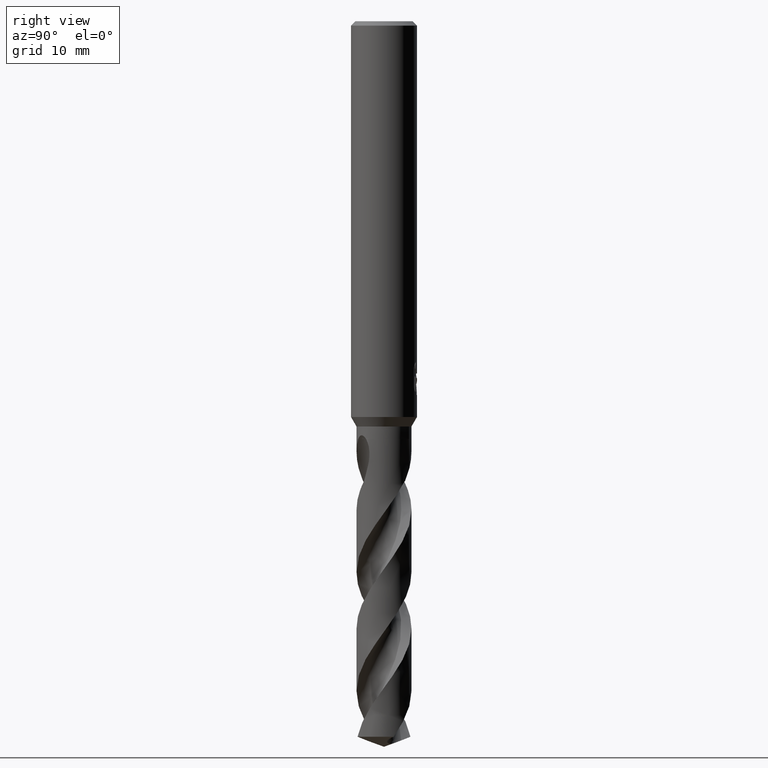
[diagram: clean part render]
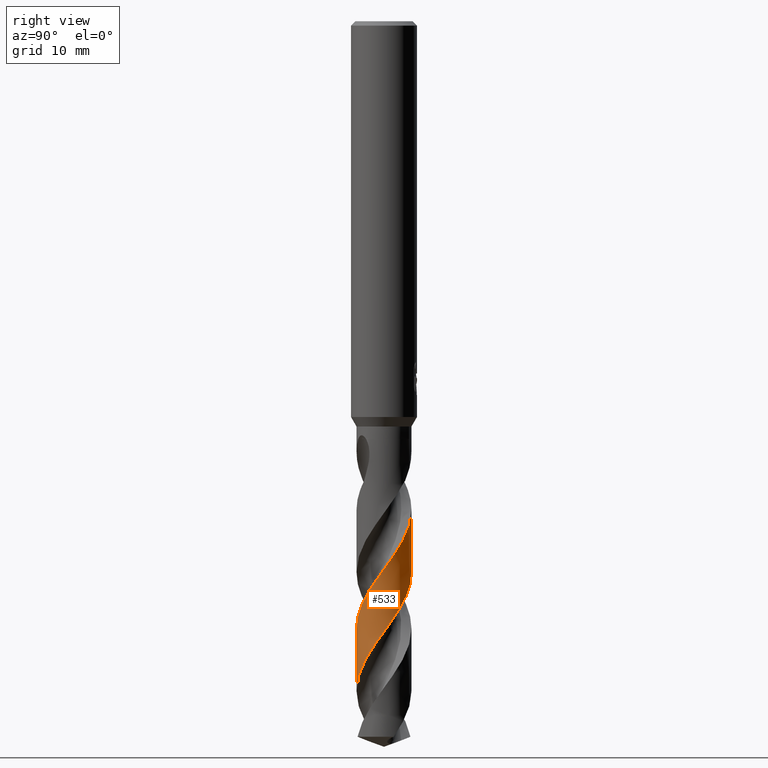
[diagram: same view with one face highlighted and labeled with its STEP entity id]
A machine part, right view. The second image highlights one B-rep face of the part: STEP entity #533.
In plain terms, the highlighted conical surface has half-angle 0 deg.
Its self-contained STEP definition (entity closure, byte-faithful):
#435=VERTEX_POINT('',#942);
#471=EDGE_CURVE('',#555,#435,#981,.T.);
#509=VERTEX_POINT('',#1024);
#533=ADVANCED_FACE('',(#1051),#1052,.T.);
#555=VERTEX_POINT('',#1074);
#561=VERTEX_POINT('',#1080);
#665=EDGE_CURVE('',#561,#435,#1193,.T.);
#717=EDGE_CURVE('',#555,#509,#1251,.T.);
#735=EDGE_CURVE('',#561,#509,#1270,.T.);
#942=CARTESIAN_POINT('',(-4.52282263023623E-014,2.49994476385778,-50.1265623821918));
#981=B_SPLINE_CURVE_WITH_KNOTS('',3,(#3710,#3711,#3712,#3713,#3714,#3715,#3716,#3717,#3718,#3719,#3720,#3721,#3722,#3723,#3724,#3725,#3726,#3727,#3728,#3729,#3730,#3731,#3732,#3733,#3734,#3735,#3736,#3737,#3738,#3739,#3740,#3741,#3742,#3743,#3744,#3745,#3746,#3747,#3748,#3749,#3750,#3751,#3752,#3753,#3754,#3755,#3756,#3757,#3758,#3759,#3760,#3761,#3762,#3763,#3764,#3765,#3766,#3767,#3768,#3769,#3770,#3771,#3772,#3773,#3774,#3775,#3776,#3777,#3778,#3779,#3780,#3781,#3782,#3783,#3784,#3785,#3786,#3787,#3788,#3789,#3790,#3791),.UNSPECIFIED.,.F.,.F.,(4,2,2,2,2,2,2,2,2,2,2,2,2,2,2,2,2,2,2,2,2,2,2,2,2,2,2,2,2,2,2,2,2,2,2,2,2,2,2,2,4),(0.0,0.705339197067454,0.793382321139927,2.25138278752314,3.00462328712798,4.43626943265148,4.65154013104783,5.90009963176698,6.6671058830871,7.53581158334608,7.96590050155425,8.69394951695833,10.0801426134938,10.1881721412805,11.6492357720889,12.1945071413989,13.4916434380483,14.0841886344595,15.3916855201915,15.9972169755421,17.3497751212634,18.1393860448176,18.8605143900051,19.3125841918353,20.1058236514083,20.8125461307724,22.2865912593847,23.1269554959695,23.5124698716947,25.8935172841633,26.4819857242191,26.9585591441111,27.5557320804792,27.9155669110931,28.0952590369785,28.1166080844096,28.1413705103888,28.1632492416796,28.1908979290136,28.2479506763335,28.3435305855534),.UNSPECIFIED.);
#1024=CARTESIAN_POINT('',(5.94388839914862E-014,-2.49996362512359,-55.2360933263023));
#1051=FACE_OUTER_BOUND('',#3954,.T.);
#1052=CONICAL_SURFACE('',#3955,2.49995,3.69138890024025E-006);
#1074=CARTESIAN_POINT('',(1.49251476546425E-012,-2.4999846378401,-60.9284538668784));
#1080=CARTESIAN_POINT('',(-4.50061804107274E-014,2.49992374959581,-44.4337831787576));
#1193=LINE('',#4779,#4780);
#1251=LINE('',#4983,#4984);
#1270=B_SPLINE_CURVE_WITH_KNOTS('',3,(#5090,#5091,#5092,#5093,#5094,#5095,#5096,#5097,#5098,#5099,#5100,#5101,#5102,#5103,#5104,#5105,#5106,#5107,#5108,#5109,#5110,#5111,#5112,#5113,#5114,#5115,#5116,#5117,#5118,#5119,#5120,#5121,#5122,#5123,#5124,#5125,#5126,#5127,#5128,#5129,#5130,#5131,#5132,#5133,#5134,#5135,#5136,#5137,#5138,#5139,#5140,#5141,#5142,#5143,#5144,#5145,#5146,#5147,#5148,#5149,#5150,#5151,#5152,#5153,#5154,#5155,#5156,#5157,#5158,#5159,#5160,#5161,#5162,#5163,#5164,#5165,#5166,#5167,#5168,#5169,#5170,#5171,#5172,#5173,#5174,#5175),.UNSPECIFIED.,.F.,.F.,(4,2,2,2,2,2,2,2,2,2,2,2,2,2,2,2,2,2,2,2,2,2,2,2,2,2,2,2,2,2,2,2,2,2,2,2,2,2,2,2,2,2,4),(0.0,0.112260864397981,0.184359363803261,0.213399574284535,0.509736657764034,0.611469456130569,0.676074612108671,0.736403610198,0.816753333084748,0.905862270015692,0.994709631882351,1.31016933782621,1.52303416408569,1.74012502638929,1.97225138631104,2.57695872480792,3.17582754790001,5.2809410103534,6.255474968566,6.95390734003384,8.33895150304389,9.04258172192699,9.76890611807947,10.9380614368724,11.458870248475,12.329443972972,13.7401059421701,14.4385569374902,15.8239700963502,16.5270780909587,17.2530806224029,18.3912785393214,19.1171676654268,20.2366143270635,20.8150936857998,21.6680457080309,23.0795614502067,23.7767668551512,25.0346132842892,25.9822451545084,26.6874134462999,27.7659504420145,28.8549960331307),.UNSPECIFIED.);
#3710=CARTESIAN_POINT('',(-2.33886570378176,-0.883010316855671,-65.0900744143346));
#3711=CARTESIAN_POINT('',(-2.29018651941373,-1.01194688165468,-64.899591205298));
#3712=CARTESIAN_POINT('',(-2.23092460497212,-1.13665062971624,-64.7100951296172));
#3713=CARTESIAN_POINT('',(-2.1530246992714,-1.27073593403021,-64.4959070600355));
#3714=CARTESIAN_POINT('',(-2.14422075936886,-1.28553609920864,-64.4721112545271));
#3715=CARTESIAN_POINT('',(-1.98678778498846,-1.54406599633667,-64.0543117839365));
#3716=CARTESIAN_POINT('',(-1.7976549868061,-1.76071742978131,-63.6691206233433));
#3717=CARTESIAN_POINT('',(-1.46106991761269,-2.03397333262025,-63.0729881102762));
#3718=CARTESIAN_POINT('',(-1.33871349423607,-2.11648751129627,-62.8683680607111));
#3719=CARTESIAN_POINT('',(-0.964657660492261,-2.32332210861559,-62.2793324202098));
#3720=CARTESIAN_POINT('',(-0.698973713689662,-2.41647371340849,-61.9016577222645));
#3721=CARTESIAN_POINT('',(-0.382407781231478,-2.47092292387326,-61.4573907860452));
#3722=CARTESIAN_POINT('',(-0.340868195840411,-2.47699755069347,-61.3992154232817));
#3723=CARTESIAN_POINT('',(-0.056348433135587,-2.51127396344896,-61.0033000692642));
#3724=CARTESIAN_POINT('',(0.189607553031624,-2.50481686222219,-60.6711730976838));
#3725=CARTESIAN_POINT('',(0.579560574119715,-2.43653722360843,-60.1276139254984));
#3726=CARTESIAN_POINT('',(0.72494026829224,-2.39726246546098,-59.9193957858108));
#3727=CARTESIAN_POINT('',(1.02504655634025,-2.28649069645021,-59.4782941951181));
#3728=CARTESIAN_POINT('',(1.17828835600058,-2.21147233878619,-59.2460040832562));
#3729=CARTESIAN_POINT('',(1.39462177848924,-2.07654618220098,-58.8966113737013));
#3730=CARTESIAN_POINT('',(1.46383890757014,-2.02833508442498,-58.7810628734268));
#3731=CARTESIAN_POINT('',(1.64305173694417,-1.88959207455748,-58.4689934029809));
#3732=CARTESIAN_POINT('',(1.7480041829164,-1.79295929273067,-58.271490477962));
#3733=CARTESIAN_POINT('',(2.02765337381636,-1.48736283540185,-57.7016448403498));
#3734=CARTESIAN_POINT('',(2.17675215974187,-1.2588531611843,-57.3352544267904));
#3735=CARTESIAN_POINT('',(2.29468417630767,-0.992329559019766,-56.9318510739895));
#3736=CARTESIAN_POINT('',(2.30295054965085,-0.97299133897287,-56.9026920016989));
#3737=CARTESIAN_POINT('',(2.41974444841605,-0.68991523508859,-56.4788123552638));
#3738=CARTESIAN_POINT('',(2.4827461711198,-0.409412690495787,-56.0928565758128));
#3739=CARTESIAN_POINT('',(2.50218422872534,-0.0171166163841849,-55.5527197643311));
#3740=CARTESIAN_POINT('',(2.50061848827988,0.0894609548753868,-55.4051585521973));
#3741=CARTESIAN_POINT('',(2.47258558300501,0.447144106676024,-54.909605765415));
#3742=CARTESIAN_POINT('',(2.4148013680497,0.694737030915162,-54.5668861005288));
#3743=CARTESIAN_POINT('',(2.27760108182114,1.03716435036888,-54.0599008925659));
#3744=CARTESIAN_POINT('',(2.22728008054499,1.14115918632063,-53.9000618284899));
#3745=CARTESIAN_POINT('',(2.04420851600865,1.46130061996071,-53.390712037741));
#3746=CARTESIAN_POINT('',(1.88533901313571,1.66131855510462,-53.0464639324678));
#3747=CARTESIAN_POINT('',(1.61227982878016,1.91421004200908,-52.5348963107895));
#3748=CARTESIAN_POINT('',(1.52051473189964,1.9878476797528,-52.3720603472176));
#3749=CARTESIAN_POINT('',(1.20901208157233,2.20376702993984,-51.8487820122252));
#3750=CARTESIAN_POINT('',(0.971688557130232,2.31825566416415,-51.4941662036529));
#3751=CARTESIAN_POINT('',(0.574074081387713,2.43795087913269,-50.9228469333753));
#3752=CARTESIAN_POINT('',(0.423951345468637,2.46849021318531,-50.7108135997946));
#3753=CARTESIAN_POINT('',(0.132737446093259,2.50033233182608,-50.3078546606294));
#3754=CARTESIAN_POINT('',(-0.00744624843985667,2.50385953433475,-50.1166243972868));
#3755=CARTESIAN_POINT('',(-0.235072303680106,2.49041743578429,-49.804154112705));
#3756=CARTESIAN_POINT('',(-0.322300937021889,2.48062603910392,-49.6839194969346));
#3757=CARTESIAN_POINT('',(-0.560271952156856,2.4411909636006,-49.3516434524049));
#3758=CARTESIAN_POINT('',(-0.709375224730758,2.40213008065173,-49.1384821213758));
#3759=CARTESIAN_POINT('',(-0.98317152774021,2.30258834019788,-48.7380818490494));
#3760=CARTESIAN_POINT('',(-1.10817670215267,2.24511367155772,-48.5504571866369));
#3761=CARTESIAN_POINT('',(-1.4776600538367,2.0367646061557,-47.9688885383383));
#3762=CARTESIAN_POINT('',(-1.70122474260381,1.85412109082809,-47.5737327089783));
#3763=CARTESIAN_POINT('',(-1.99616335626811,1.51384661083037,-46.9566524289922));
#3764=CARTESIAN_POINT('',(-2.09065772907504,1.38033475722806,-46.7341315470007));
#3765=CARTESIAN_POINT('',(-2.20836769235021,1.17403016729757,-46.4065933733178));
#3766=CARTESIAN_POINT('',(-2.24235575534413,1.10771172241147,-46.3032037168182));
#3767=CARTESIAN_POINT('',(-2.46440497019878,0.622373707279598,-45.5649438217405));
#3768=CARTESIAN_POINT('',(-2.53689484101531,0.15942215533147,-44.9506343893688));
#3769=CARTESIAN_POINT('',(-2.46865486738844,-0.410223194938036,-44.1590448383229));
#3770=CARTESIAN_POINT('',(-2.44753224229699,-0.521604767257759,-44.0012674652668));
#3771=CARTESIAN_POINT('',(-2.39566460204549,-0.720306041270175,-43.7181079108659));
#3772=CARTESIAN_POINT('',(-2.367409825996,-0.808501262630983,-43.5917896803095));
#3773=CARTESIAN_POINT('',(-2.2921215634324,-1.00470770934608,-43.308547468957));
#3774=CARTESIAN_POINT('',(-2.24349532738679,-1.10898136845446,-43.1578285819941));
#3775=CARTESIAN_POINT('',(-2.15326583726819,-1.27198428116621,-42.8993481075791));
#3776=CARTESIAN_POINT('',(-2.1175666436352,-1.33039309085748,-42.8017300139555));
#3777=CARTESIAN_POINT('',(-2.06214467795192,-1.41359606396385,-42.6525047179898));
#3778=CARTESIAN_POINT('',(-2.04345011854873,-1.44046235586593,-42.6025385631179));
#3779=CARTESIAN_POINT('',(-2.02233273510932,-1.46961519980199,-42.5461035415484));
#3780=CARTESIAN_POINT('',(-2.01551642420652,-1.47903259207708,-42.5277380610302));
#3781=CARTESIAN_POINT('',(-1.99471950686108,-1.5069926528753,-42.4744216398202));
#3782=CARTESIAN_POINT('',(-1.98318630155062,-1.52214706326465,-42.4460597634404));
#3783=CARTESIAN_POINT('',(-1.96067864081638,-1.55100453566303,-42.3930469474543));
#3784=CARTESIAN_POINT('',(-1.94981519695124,-1.56464560566354,-42.3683950926759));
#3785=CARTESIAN_POINT('',(-1.92446653391734,-1.59577896060922,-42.3130159374346));
#3786=CARTESIAN_POINT('',(-1.90981001707499,-1.61330353828892,-42.2824627816051));
#3787=CARTESIAN_POINT('',(-1.86321241132956,-1.66743255269772,-42.1898301555769));
#3788=CARTESIAN_POINT('',(-1.82964914944576,-1.7043004560509,-42.1291412409542));
#3789=CARTESIAN_POINT('',(-1.73317511116033,-1.80366253559055,-41.9703392436052));
#3790=CARTESIAN_POINT('',(-1.66656418716018,-1.86580910510559,-41.8759866470075));
#3791=CARTESIAN_POINT('',(-1.59301279645432,-1.9266240155434,-41.785));
#3954=EDGE_LOOP('',(#5504,#5505,#5506,#5507));
#3955=AXIS2_PLACEMENT_3D('',#5508,#5509,#5510);
#4779=CARTESIAN_POINT('',(-3.06343646383248E-016,2.49995,-51.5450372071672));
#4780=VECTOR('',#5651,1.0);
#4983=CARTESIAN_POINT('',(3.05947284464402E-016,-2.49995,-51.5450372071672));
#4984=VECTOR('',#5724,1.0);
#5090=CARTESIAN_POINT('',(-1.73763251753517,1.79727657886597,-41.785));
#5091=CARTESIAN_POINT('',(-1.72252333531716,1.81188450975389,-41.8159612488735));
#5092=CARTESIAN_POINT('',(-1.70718617085513,1.82634501856555,-41.8468795146329));
#5093=CARTESIAN_POINT('',(-1.68154298267998,1.84991098373826,-41.897580907247));
#5094=CARTESIAN_POINT('',(-1.67141317876823,1.85906925310798,-41.9173653165301));
#5095=CARTESIAN_POINT('',(-1.65703232954043,1.87185662163627,-41.9450887434018));
#5096=CARTESIAN_POINT('',(-1.6528851984722,1.87551971778129,-41.9530420790741));
#5097=CARTESIAN_POINT('',(-1.60620232636707,1.91647797613241,-42.0420979239649));
#5098=CARTESIAN_POINT('',(-1.56246716797805,1.95234792771077,-42.1210954415223));
#5099=CARTESIAN_POINT('',(-1.50028167347057,1.99978310687406,-42.2279758830858));
#5100=CARTESIAN_POINT('',(-1.48419571490945,2.01175231020023,-42.2551787188422));
#5101=CARTESIAN_POINT('',(-1.45753670999042,2.03109077354861,-42.2996346269278));
#5102=CARTESIAN_POINT('',(-1.44710899817522,2.03853378537185,-42.3168713218699));
#5103=CARTESIAN_POINT('',(-1.42679459870447,2.05279836943604,-42.3501934975608));
#5104=CARTESIAN_POINT('',(-1.41692666331163,2.05962221572898,-42.366265121581));
#5105=CARTESIAN_POINT('',(-1.39377738133427,2.07538472772317,-42.4037411168876));
#5106=CARTESIAN_POINT('',(-1.38046563645428,2.08426304220794,-42.4251198296934));
#5107=CARTESIAN_POINT('',(-1.35220723015523,2.1027204110797,-42.4702394281732));
#5108=CARTESIAN_POINT('',(-1.33726269701465,2.11225587310889,-42.4939484197089));
#5109=CARTESIAN_POINT('',(-1.3072564298652,2.13095660652669,-42.5413850381339));
#5110=CARTESIAN_POINT('',(-1.29232449782342,2.14004504860097,-42.5649268475504));
#5111=CARTESIAN_POINT('',(-1.22332005298629,2.18105409025878,-42.6736537518755));
#5112=CARTESIAN_POINT('',(-1.1686119397487,2.21082703703966,-42.7594024169131));
#5113=CARTESIAN_POINT('',(-1.07590408053925,2.25693625153703,-42.9026979907032));
#5114=CARTESIAN_POINT('',(-1.03811787139033,2.27456344180679,-42.9605691828696));
#5115=CARTESIAN_POINT('',(-0.960985511359174,2.308225764917,-43.0773163560093));
#5116=CARTESIAN_POINT('',(-0.921551483904369,2.32425367032093,-43.1362986554134));
#5117=CARTESIAN_POINT('',(-0.839004025607875,2.35536562401067,-43.2581045465728));
#5118=CARTESIAN_POINT('',(-0.796090888532881,2.37021423757732,-43.3204323116492));
#5119=CARTESIAN_POINT('',(-0.639376534975514,2.41969056288015,-43.5458807467084));
#5120=CARTESIAN_POINT('',(-0.523769726785364,2.4473157517187,-43.7080488747472));
#5121=CARTESIAN_POINT('',(-0.290712061321603,2.48574152964552,-44.0324353282882));
#5122=CARTESIAN_POINT('',(-0.173728399406881,2.49663090714221,-44.1943179046256));
#5123=CARTESIAN_POINT('',(0.355258969957849,2.50860697346788,-44.9235593870129));
#5124=CARTESIAN_POINT('',(0.76351808274427,2.41600035035728,-45.4815312945286));
#5125=CARTESIAN_POINT('',(1.30197299347946,2.1426697811221,-46.31106381553));
#5126=CARTESIAN_POINT('',(1.46172325610689,2.03700617845406,-46.573145334837));
#5127=CARTESIAN_POINT('',(1.71242825474656,1.82645486217131,-47.0241990339206));
#5128=CARTESIAN_POINT('',(1.80979503284007,1.73004530276872,-47.2121272242569));
#5129=CARTESIAN_POINT('',(2.07544703988881,1.41982938343384,-47.7733523730699));
#5130=CARTESIAN_POINT('',(2.21720066386726,1.18628887309635,-48.1441944867819));
#5131=CARTESIAN_POINT('',(2.37014142484875,0.806917128396147,-48.7071592389239));
#5132=CARTESIAN_POINT('',(2.41103927264376,0.674999637538866,-48.8963335641817));
#5133=CARTESIAN_POINT('',(2.47163657854173,0.401250805539074,-49.2814895665421));
#5134=CARTESIAN_POINT('',(2.49045213073503,0.259951390782246,-49.4767087971323));
#5135=CARTESIAN_POINT('',(2.50795736213588,-0.110676779446218,-49.9877567146545));
#5136=CARTESIAN_POINT('',(2.48731984448235,-0.339900941854813,-50.3015001586411));
#5137=CARTESIAN_POINT('',(2.41265118995953,-0.662782316827547,-50.7567138613136));
#5138=CARTESIAN_POINT('',(2.38358285035791,-0.760708160842329,-50.8967340635618));
#5139=CARTESIAN_POINT('',(2.29020920139356,-1.01674147264556,-51.2718526106045));
#5140=CARTESIAN_POINT('',(2.21552212654012,-1.17061022199388,-51.506378327884));
#5141=CARTESIAN_POINT('',(1.98019957447149,-1.55081325593043,-52.1212928143052));
#5142=CARTESIAN_POINT('',(1.79673707470065,-1.76006050820629,-52.4982066654968));
#5143=CARTESIAN_POINT('',(1.4770632193138,-2.02157595960438,-53.0669998680844));
#5144=CARTESIAN_POINT('',(1.36419782506063,-2.09940615047098,-53.2550031617408));
#5145=CARTESIAN_POINT('',(1.00986821521097,-2.30299156464392,-53.8165632951909));
#5146=CARTESIAN_POINT('',(0.75390861783778,-2.39897411173886,-54.1877323401761));
#5147=CARTESIAN_POINT('',(0.352637911157766,-2.47879544892285,-54.7508913923925));
#5148=CARTESIAN_POINT('',(0.215473377630436,-2.49447489579981,-54.9400033942706));
#5149=CARTESIAN_POINT('',(-0.0647164143704662,-2.50318029125977,-55.3250706851135));
#5150=CARTESIAN_POINT('',(-0.207048247494991,-2.49542970968005,-55.5202326259576));
#5151=CARTESIAN_POINT('',(-0.56858039697824,-2.44463391380991,-56.0230316144241));
#5152=CARTESIAN_POINT('',(-0.784379149224132,-2.38420746294383,-56.3287322025186));
#5153=CARTESIAN_POINT('',(-1.12021046051182,-2.23947641372666,-56.8310641184024));
#5154=CARTESIAN_POINT('',(-1.24581739234765,-2.17209685378461,-57.026199561421));
#5155=CARTESIAN_POINT('',(-1.54863283957287,-1.97475894813139,-57.5239715787508));
#5156=CARTESIAN_POINT('',(-1.71594996590589,-1.83128955046827,-57.8247579501289));
#5157=CARTESIAN_POINT('',(-1.93817520512301,-1.58310863870926,-58.2823826923513));
#5158=CARTESIAN_POINT('',(-2.00798844882317,-1.49355720431913,-58.4379139467633));
#5159=CARTESIAN_POINT('',(-2.16505013784096,-1.26110534007432,-58.8240279284813));
#5160=CARTESIAN_POINT('',(-2.24454505612968,-1.1135009377857,-59.0539622265998));
#5161=CARTESIAN_POINT('',(-2.41489958907924,-0.703405976010952,-59.6647036802505));
#5162=CARTESIAN_POINT('',(-2.4778493408574,-0.432023431613768,-60.0418923222221));
#5163=CARTESIAN_POINT('',(-2.503634884442,-0.0196933934571156,-60.6109144041946));
#5164=CARTESIAN_POINT('',(-2.50097886871375,0.117197858275783,-60.7987195120287));
#5165=CARTESIAN_POINT('',(-2.46212169587073,0.498783927950691,-61.3258934336175));
#5166=CARTESIAN_POINT('',(-2.40091599944267,0.739127207484304,-61.663113178621));
#5167=CARTESIAN_POINT('',(-2.23381939159023,1.13775665563353,-62.2581594994216));
#5168=CARTESIAN_POINT('',(-2.14310945923877,1.3006262674841,-62.5127378027975));
#5169=CARTESIAN_POINT('',(-1.95469301279321,1.56470195363854,-62.958274586715));
#5170=CARTESIAN_POINT('',(-1.8651832026667,1.67036731294681,-63.1480903354741));
#5171=CARTESIAN_POINT('',(-1.61814650352558,1.91733878379423,-63.6295195013268));
#5172=CARTESIAN_POINT('',(-1.45028454623987,2.04730432859257,-63.9195889522927));
#5173=CARTESIAN_POINT('',(-1.08365734352574,2.26304112295259,-64.5040157661129));
#5174=CARTESIAN_POINT('',(-0.88633245956452,2.34735393691689,-64.7963888538523));
#5175=CARTESIAN_POINT('',(-0.680722000651791,2.40553893292721,-65.0900744143345));
#5504=ORIENTED_EDGE('',*,*,#665,.F.);
#5505=ORIENTED_EDGE('',*,*,#735,.T.);
#5506=ORIENTED_EDGE('',*,*,#717,.F.);
#5507=ORIENTED_EDGE('',*,*,#471,.T.);
#5508=CARTESIAN_POINT('',(0.0,0.0,-51.5450372071672));
#5509=DIRECTION('',(0.0,-0.0,-1.0));
#5510=DIRECTION('',(0.0,1.0,0.0));
#5651=DIRECTION('',(-4.52049830165335E-022,3.69138890023187E-006,-0.999999999993187));
#5724=DIRECTION('',(-4.52049830165335E-022,3.69138890023187E-006,0.999999999993187));